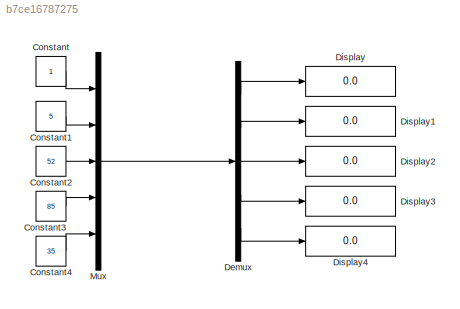
MODEL slx_b7ce16787275
KIND model
CONFIG AbsTol = auto
CONFIG EnableMultiTasking = off
CONFIG FixedStep = auto
CONFIG MaxStep = auto
CONFIG MinStep = auto
CONFIG RelTol = 1e-3
CONFIG SampleTimeConstraint = Unconstrained
CONFIG SolverName = VariableStepAuto
CONFIG StartTime = 0.0
CONFIG StopTime = 10.0
BLOCK [Constant] Constant
BLOCK [Constant] Constant1
  Value = 5
BLOCK [Constant] Constant2
  Value = 52
BLOCK [Constant] Constant3
  Value = 85
BLOCK [Constant] Constant4
  Value = 35
BLOCK [Demux] Demux
  Outputs = 5
  Ports = [1, 5]
BLOCK [Display] Display
  Decimation = 1
  Ports = [1]
BLOCK [Display] Display1
  Decimation = 1
  Ports = [1]
BLOCK [Display] Display2
  Decimation = 1
  Ports = [1]
BLOCK [Display] Display3
  Decimation = 1
  Ports = [1]
BLOCK [Display] Display4
  Decimation = 1
  Ports = [1]
BLOCK [Mux] Mux
  DisplayOption = bar
  Inputs = 5
  Ports = [5, 1]
LINE Constant1:1 -> Mux:2
LINE Constant2:1 -> Mux:3
LINE Constant3:1 -> Mux:4
LINE Constant4:1 -> Mux:5
LINE Constant:1 -> Mux:1
LINE Demux:1 -> Display:1
LINE Demux:2 -> Display1:1
LINE Demux:3 -> Display2:1
LINE Demux:4 -> Display3:1
LINE Demux:5 -> Display4:1
LINE Mux:1 -> Demux:1
